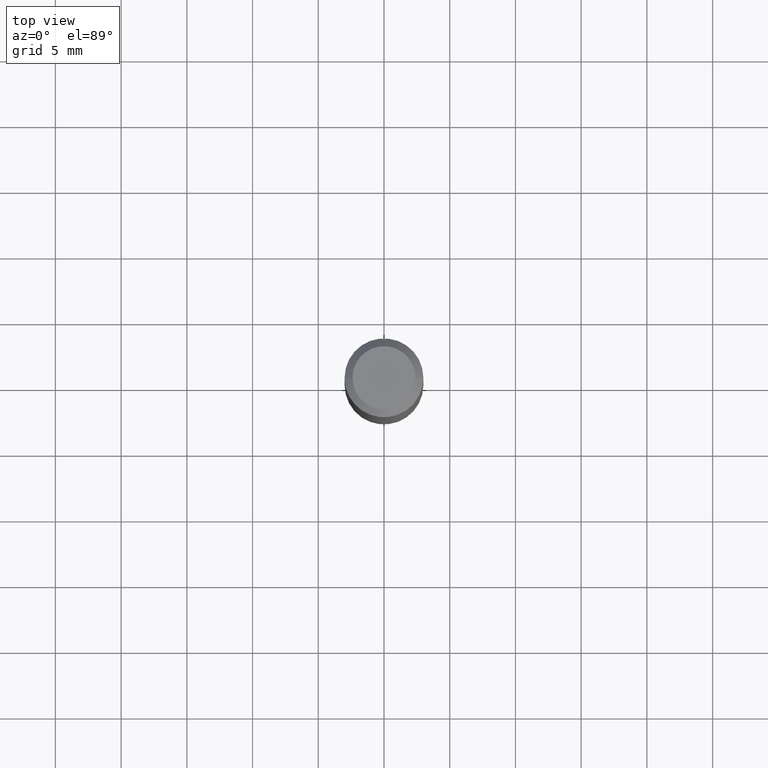
[diagram: clean part render]
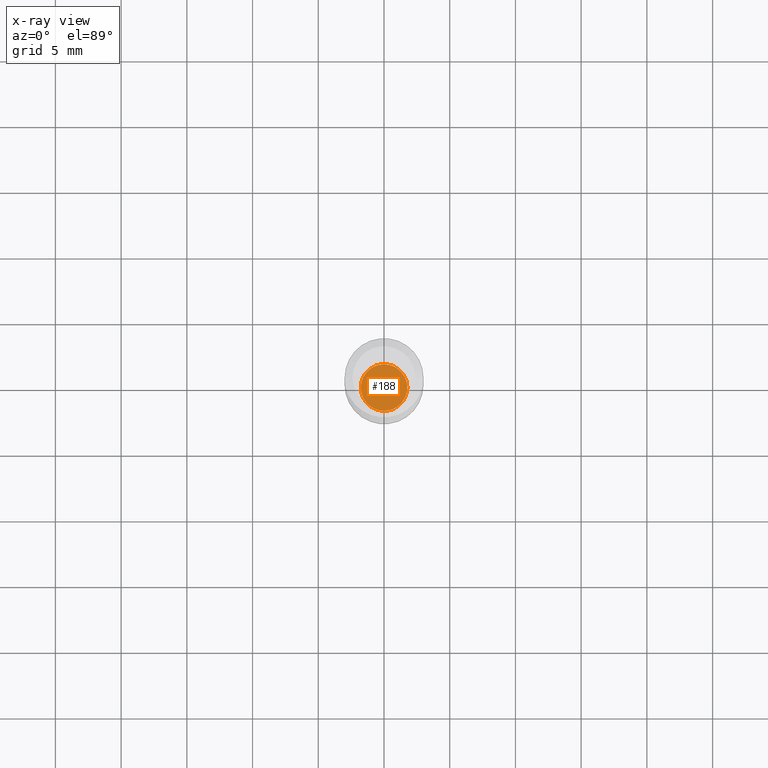
[diagram: x-ray — body ghosted, one internal face saturated and labeled with its STEP entity id]
A machine part, top view, then the same camera in x-ray: the body is ghosted and one INTERNAL B-rep face — a face not visible from any outside direction — is saturated and labeled: STEP entity #188.
In plain terms, the highlighted planar face has unit normal (-0, 0, 1).
Its self-contained STEP definition (entity closure, byte-faithful):
#35 = FACE_OUTER_BOUND ( 'NONE', #285, .T. ) ;
#57 = AXIS2_PLACEMENT_3D ( 'NONE', #71, #438, #115 ) ;
#71 = CARTESIAN_POINT ( 'NONE',  ( 4.187620783711426965E-29, -5.978812644635001292E-15, -1.712399999999999700 ) ) ;
#75 = DIRECTION ( 'NONE',  ( -2.445468806185136597E-29, 3.491481338843145583E-15, 1.000000000000000000 ) ) ;
#102 = DIRECTION ( 'NONE',  ( 1.000000000000000000, -6.982962677686271444E-15, 0.000000000000000000 ) ) ;
#115 = DIRECTION ( 'NONE',  ( 1.000000000000000000, -6.982962677686265922E-15, 4.876176775795935793E-29 ) ) ;
#138 = AXIS2_PLACEMENT_3D ( 'NONE', #397, #75, #474 ) ;
#158 = EDGE_CURVE ( 'NONE', #161, #362, #509, .T. ) ;
#161 = VERTEX_POINT ( 'NONE', #434 ) ;
#171 = ORIENTED_EDGE ( 'NONE', *, *, #158, .F. ) ;
#188 = ADVANCED_FACE ( 'NONE', ( #35 ), #310, .F. ) ;
#211 = CIRCLE ( 'NONE', #319, 0.06980000000000000093 ) ;
#285 = EDGE_LOOP ( 'NONE', ( #427, #171 ) ) ;
#310 = PLANE ( 'NONE',  #57 ) ;
#319 = AXIS2_PLACEMENT_3D ( 'NONE', #499, #414, #102 ) ;
#362 = VERTEX_POINT ( 'NONE', #416 ) ;
#397 = CARTESIAN_POINT ( 'NONE',  ( 4.187620783711426965E-29, -5.978812644635001292E-15, -1.712399999999999700 ) ) ;
#414 = DIRECTION ( 'NONE',  ( -2.445468806185136597E-29, 3.491481338843145583E-15, 1.000000000000000000 ) ) ;
#416 = CARTESIAN_POINT ( 'NONE',  ( 0.06980000000000000093, -6.466223439537503232E-15, -1.712399999999999700 ) ) ;
#427 = ORIENTED_EDGE ( 'NONE', *, *, #507, .F. ) ;
#434 = CARTESIAN_POINT ( 'NONE',  ( -0.06980000000000000093, -5.480204587900340352E-15, -1.712399999999999700 ) ) ;
#438 = DIRECTION ( 'NONE',  ( -2.438088387897960049E-29, 3.491481338843145188E-15, 1.000000000000000000 ) ) ;
#474 = DIRECTION ( 'NONE',  ( 1.000000000000000000, -6.982962677686271444E-15, 0.000000000000000000 ) ) ;
#499 = CARTESIAN_POINT ( 'NONE',  ( 4.187620783711426965E-29, -5.978812644635001292E-15, -1.712399999999999700 ) ) ;
#507 = EDGE_CURVE ( 'NONE', #362, #161, #211, .T. ) ;
#509 = CIRCLE ( 'NONE', #138, 0.06980000000000000093 ) ;